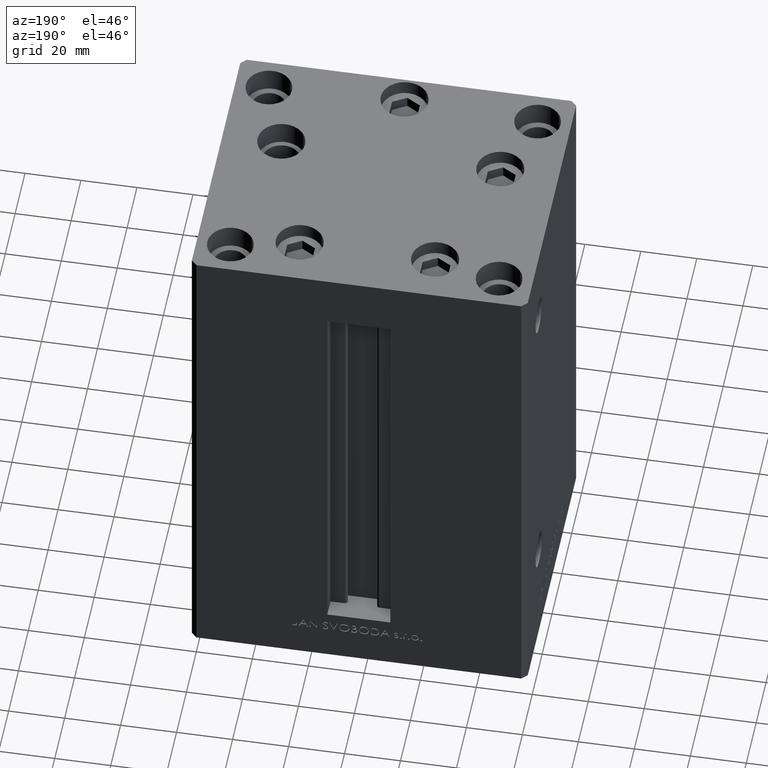
[diagram: clean part render]
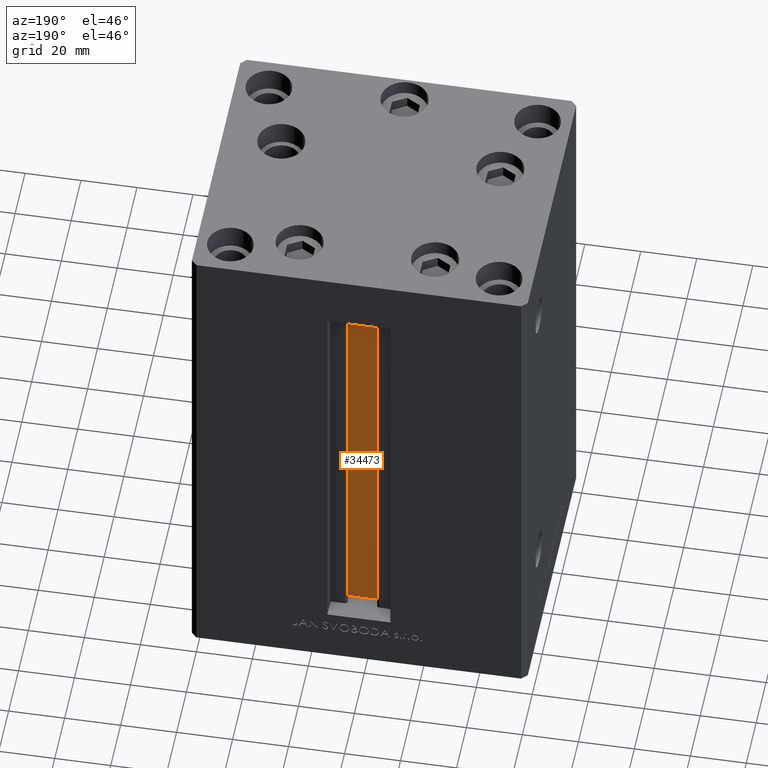
[diagram: same view with one face highlighted and labeled with its STEP entity id]
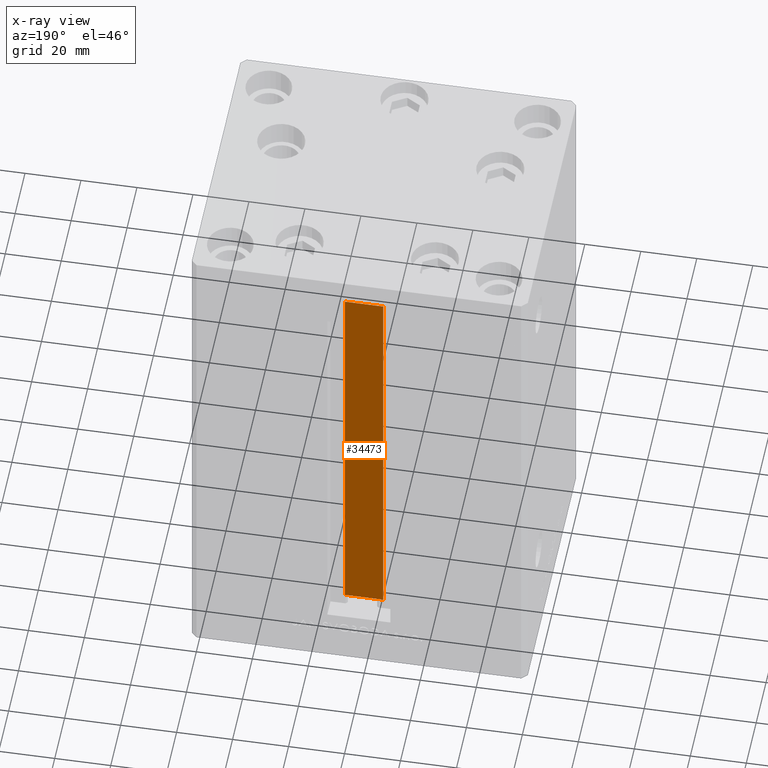
[diagram: x-ray of the same camera — body ghosted, the highlighted face saturated]
A machine part, auxiliary view. The second image highlights one B-rep face of the part: STEP entity #34473.
The next image is the same camera in x-ray: the body ghosted, the highlighted face saturated — about 0% of this face is hidden behind the body in this view.
In plain terms, the highlighted planar face has unit normal (0, -1, 0).
Its self-contained STEP definition (entity closure, byte-faithful):
#3496 = CARTESIAN_POINT ( 'NONE',  ( -6.876153656360466826, 40.49999999999987210, 0.000000000000000000 ) ) ;
#4558 = VERTEX_POINT ( 'NONE', #3496 ) ;
#5749 = CARTESIAN_POINT ( 'NONE',  ( 6.876153656360466826, 40.49999999999987210, 0.000000000000000000 ) ) ;
#7808 = VERTEX_POINT ( 'NONE', #48728 ) ;
#8335 = CARTESIAN_POINT ( 'NONE',  ( 6.876153656360466826, 40.49999999999987210, 0.000000000000000000 ) ) ;
#11438 = ORIENTED_EDGE ( 'NONE', *, *, #38304, .T. ) ;
#13351 = LINE ( 'NONE', #5749, #40705 ) ;
#13534 = DIRECTION ( 'NONE',  ( -0.000000000000000000, -0.000000000000000000, 1.000000000000000000 ) ) ;
#16375 = ORIENTED_EDGE ( 'NONE', *, *, #46701, .F. ) ;
#16622 = LINE ( 'NONE', #24740, #30486 ) ;
#17327 = CARTESIAN_POINT ( 'NONE',  ( -6.876153656360466826, 40.49999999999987210, 0.000000000000000000 ) ) ;
#18075 = CARTESIAN_POINT ( 'NONE',  ( 6.876153656360466826, 40.49999999999987210, 0.000000000000000000 ) ) ;
#21259 = AXIS2_PLACEMENT_3D ( 'NONE', #8335, #23310, #34735 ) ;
#21758 = LINE ( 'NONE', #37222, #23175 ) ;
#23175 = VECTOR ( 'NONE', #44343, 1000.000000000000000 ) ;
#23310 = DIRECTION ( 'NONE',  ( 0.000000000000000000, -1.000000000000000000, -0.000000000000000000 ) ) ;
#24740 = CARTESIAN_POINT ( 'NONE',  ( 0.000000000000000000, 40.49999999999987210, 148.5000000000000000 ) ) ;
#26666 = ORIENTED_EDGE ( 'NONE', *, *, #30585, .F. ) ;
#27098 = PLANE ( 'NONE',  #21259 ) ;
#27865 = ORIENTED_EDGE ( 'NONE', *, *, #42797, .F. ) ;
#30486 = VECTOR ( 'NONE', #40459, 1000.000000000000000 ) ;
#30585 = EDGE_CURVE ( 'NONE', #38368, #31419, #13351, .T. ) ;
#31419 = VERTEX_POINT ( 'NONE', #35180 ) ;
#32558 = LINE ( 'NONE', #17327, #42441 ) ;
#34473 = ADVANCED_FACE ( 'NONE', ( #39018 ), #27098, .F. ) ;
#34735 = DIRECTION ( 'NONE',  ( 0.000000000000000000, 0.000000000000000000, -1.000000000000000000 ) ) ;
#35180 = CARTESIAN_POINT ( 'NONE',  ( 6.876153656360466826, 40.49999999999987210, 148.5000000000000000 ) ) ;
#37222 = CARTESIAN_POINT ( 'NONE',  ( 6.876153656360466826, 40.49999999999987210, 0.000000000000000000 ) ) ;
#38304 = EDGE_CURVE ( 'NONE', #4558, #7808, #32558, .T. ) ;
#38368 = VERTEX_POINT ( 'NONE', #18075 ) ;
#39018 = FACE_OUTER_BOUND ( 'NONE', #46312, .T. ) ;
#40459 = DIRECTION ( 'NONE',  ( -1.000000000000000000, 0.000000000000000000, 0.000000000000000000 ) ) ;
#40705 = VECTOR ( 'NONE', #48615, 1000.000000000000000 ) ;
#42441 = VECTOR ( 'NONE', #13534, 1000.000000000000000 ) ;
#42797 = EDGE_CURVE ( 'NONE', #4558, #38368, #21758, .T. ) ;
#44343 = DIRECTION ( 'NONE',  ( 1.000000000000000000, -0.000000000000000000, -0.000000000000000000 ) ) ;
#46312 = EDGE_LOOP ( 'NONE', ( #26666, #27865, #11438, #16375 ) ) ;
#46701 = EDGE_CURVE ( 'NONE', #31419, #7808, #16622, .T. ) ;
#48615 = DIRECTION ( 'NONE',  ( -0.000000000000000000, -0.000000000000000000, 1.000000000000000000 ) ) ;
#48728 = CARTESIAN_POINT ( 'NONE',  ( -6.876153656360466826, 40.49999999999987210, 148.5000000000000000 ) ) ;